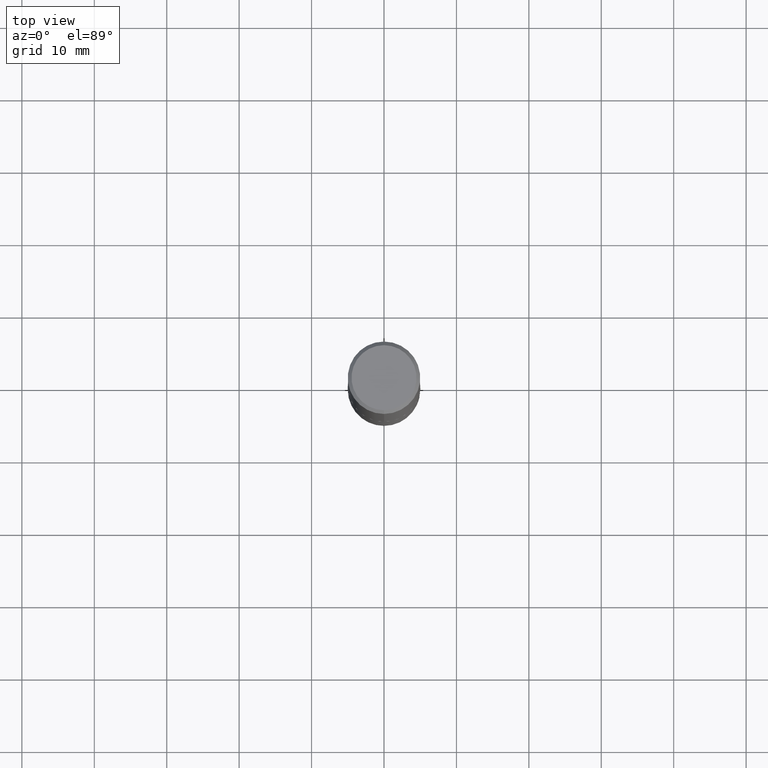
[diagram: clean part render]
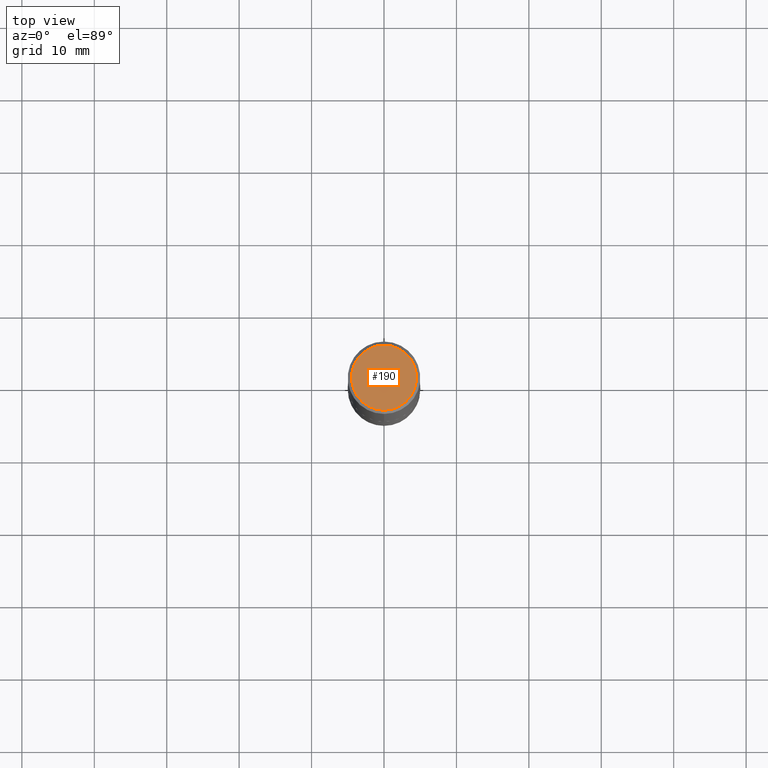
[diagram: same view with one face highlighted and labeled with its STEP entity id]
A machine part, top view. The second image highlights one B-rep face of the part: STEP entity #190.
In plain terms, the highlighted planar face has unit normal (0, -0, -1).
Its self-contained STEP definition (entity closure, byte-faithful):
#10 = AXIS2_PLACEMENT_3D ( 'NONE', #258, #82, #76 ) ;
#39 = PLANE ( 'NONE',  #193 ) ;
#44 = VERTEX_POINT ( 'NONE', #370 ) ;
#49 = CARTESIAN_POINT ( 'NONE',  ( 1.304766576325678902E-15, 0.1768499999999999239, -5.192926875021004532E-16 ) ) ;
#52 = FACE_OUTER_BOUND ( 'NONE', #293, .T. ) ;
#66 = ORIENTED_EDGE ( 'NONE', *, *, #353, .T. ) ;
#76 = DIRECTION ( 'NONE',  ( -6.982962677686265922E-15, -1.000000000000000000, 3.492897042394239153E-15 ) ) ;
#82 = DIRECTION ( 'NONE',  ( -2.444480225679141495E-29, 3.492897042394238758E-15, 1.000000000000000000 ) ) ;
#86 = CIRCLE ( 'NONE', #10, 0.1768499999999999239 ) ;
#130 = VERTEX_POINT ( 'NONE', #49 ) ;
#132 = DIRECTION ( 'NONE',  ( 2.444480225679141214E-29, -3.492897042394238758E-15, -1.000000000000000000 ) ) ;
#190 = ADVANCED_FACE ( 'NONE', ( #52 ), #39, .F. ) ;
#193 = AXIS2_PLACEMENT_3D ( 'NONE', #255, #132, #361 ) ;
#255 = CARTESIAN_POINT ( 'NONE',  ( 1.234936949548815604E-15, 0.1768499999999999239, -5.685057647247607263E-16 ) ) ;
#258 = CARTESIAN_POINT ( 'NONE',  ( -2.406007882312265336E-45, 3.437924237562976850E-31, 9.842615444532026278E-17 ) ) ;
#285 = ORIENTED_EDGE ( 'NONE', *, *, #316, .T. ) ;
#293 = EDGE_LOOP ( 'NONE', ( #285, #66 ) ) ;
#316 = EDGE_CURVE ( 'NONE', #130, #44, #86, .T. ) ;
#317 = DIRECTION ( 'NONE',  ( -6.982962677686265922E-15, -1.000000000000000000, 3.492897042394239153E-15 ) ) ;
#350 = AXIS2_PLACEMENT_3D ( 'NONE', #351, #412, #317 ) ;
#351 = CARTESIAN_POINT ( 'NONE',  ( -2.406007882312265336E-45, 3.437924237562976850E-31, 9.842615444532026278E-17 ) ) ;
#353 = EDGE_CURVE ( 'NONE', #44, #130, #367, .T. ) ;
#361 = DIRECTION ( 'NONE',  ( 6.982962677686265922E-15, 1.000000000000000000, -3.492897042394238758E-15 ) ) ;
#367 = CIRCLE ( 'NONE', #350, 0.1768499999999999239 ) ;
#370 = CARTESIAN_POINT ( 'NONE',  ( -1.281884050883610098E-15, -0.1768499999999999239, 7.161449963927411513E-16 ) ) ;
#412 = DIRECTION ( 'NONE',  ( -2.444480225679141495E-29, 3.492897042394238758E-15, 1.000000000000000000 ) ) ;